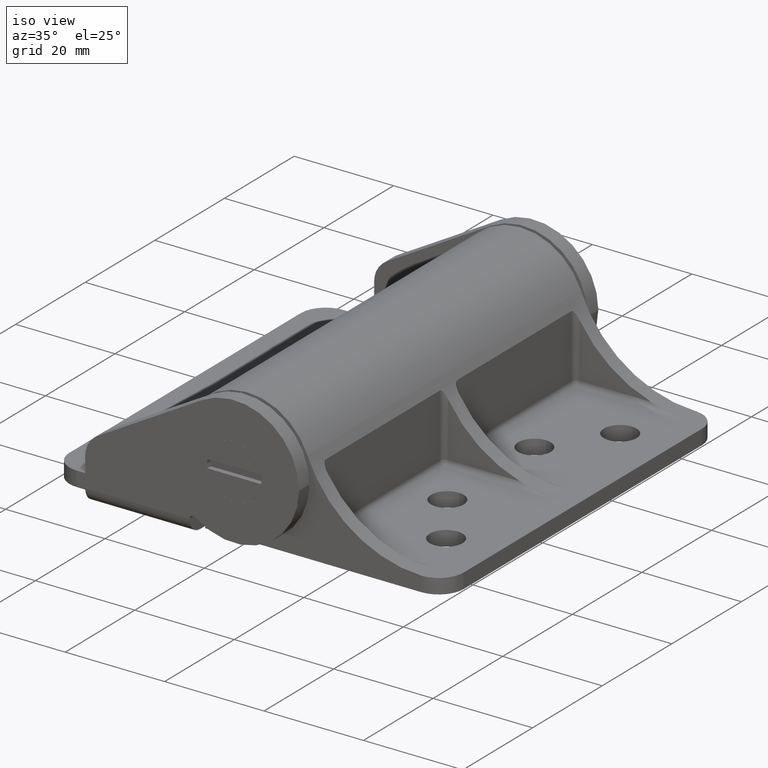
[diagram: clean part render]
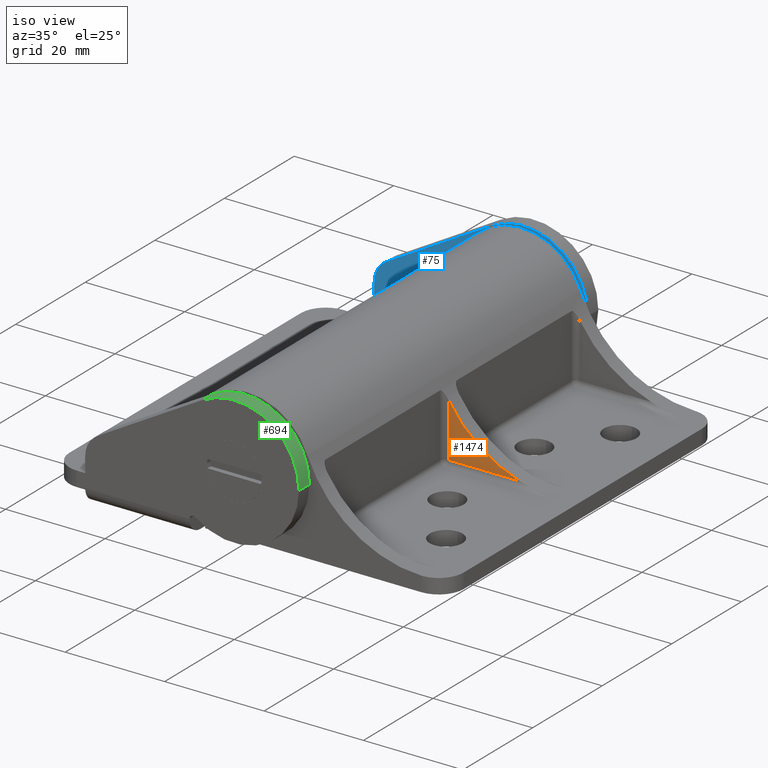
[diagram: same view with three faces highlighted in distinct colors, each labeled with its STEP entity id]
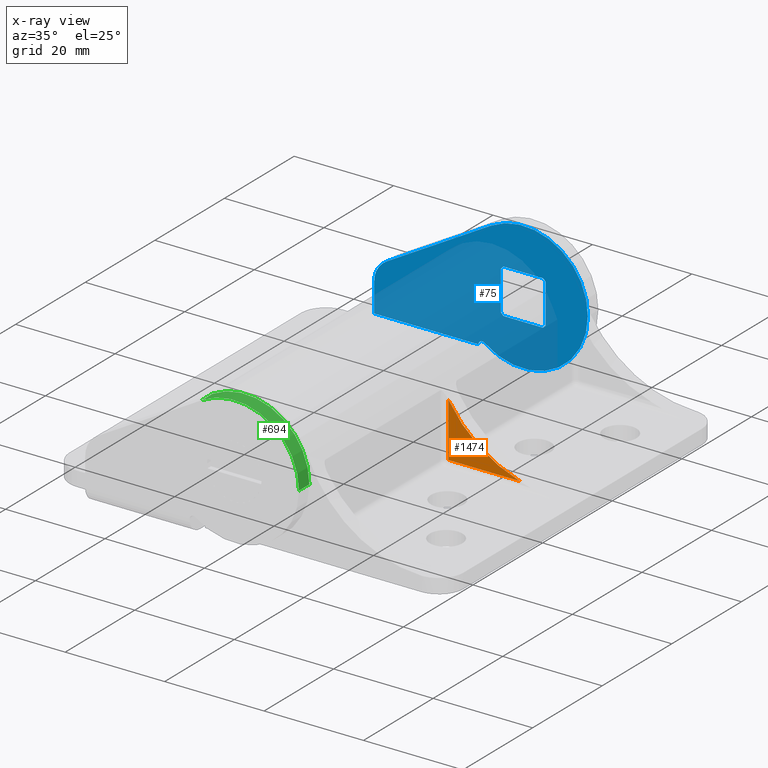
[diagram: x-ray of the same camera — body ghosted, the three highlighted faces saturated]
A machine part, iso view with three faces highlighted in distinct colors.
The next image is the same camera in x-ray (body ghosted, the three faces saturated) — at least one of them is partly hidden behind the body in this view.
Their STEP definitions:

[orange] entity #1474 — the highlighted planar face has unit normal (0, -1, -0).
#194 = CARTESIAN_POINT ( 'NONE',  ( 35.32704350000000200, 10.00000000000000000, 41.50000000000000000 ) ) ;
#594 = FACE_OUTER_BOUND ( 'NONE', #1595, .T. ) ;
#734 = LINE ( 'NONE', #2202, #2346 ) ;
#794 = VERTEX_POINT ( 'NONE', #2863 ) ;
#872 = EDGE_CURVE ( 'NONE', #2406, #794, #3010, .T. ) ;
#975 = AXIS2_PLACEMENT_3D ( 'NONE', #1772, #1479, #1307 ) ;
#1006 = EDGE_CURVE ( 'NONE', #3505, #2406, #734, .T. ) ;
#1307 = DIRECTION ( 'NONE',  ( -1.000000000000000000, 0.0000000000000000000, 0.0000000000000000000 ) ) ;
#1459 = ORIENTED_EDGE ( 'NONE', *, *, #1006, .F. ) ;
#1469 = PLANE ( 'NONE',  #975 ) ;
#1474 = ADVANCED_FACE ( 'NONE', ( #594 ), #1469, .T. ) ;
#1479 = DIRECTION ( 'NONE',  ( 0.0000000000000000000, 0.0000000000000000000, -1.000000000000000000 ) ) ;
#1595 = EDGE_LOOP ( 'NONE', ( #1459, #2918, #2822 ) ) ;
#1754 = VECTOR ( 'NONE', #3507, 1000.000000000000000 ) ;
#1772 = CARTESIAN_POINT ( 'NONE',  ( 14.00000000000000000, 985.9570018245660800, 41.50000000000000000 ) ) ;
#2015 = DIRECTION ( 'NONE',  ( 0.0000000000000000000, -1.000000000000000000, 0.0000000000000000000 ) ) ;
#2033 = CARTESIAN_POINT ( 'NONE',  ( 14.00000000000000000, -0.9555676417443239600, 41.50000000000000000 ) ) ;
#2202 = CARTESIAN_POINT ( 'NONE',  ( 14.00000000000000000, 985.9570018245660800, 41.50000000000000000 ) ) ;
#2346 = VECTOR ( 'NONE', #2015, 1000.000000000000000 ) ;
#2406 = VERTEX_POINT ( 'NONE', #2033 ) ;
#2704 = CARTESIAN_POINT ( 'NONE',  ( 35.32704350000000200, -14.00000000000000000, 41.50000000000000000 ) ) ;
#2733 = DIRECTION ( 'NONE',  ( 0.0000000000000000000, 0.0000000000000000000, -1.000000000000000000 ) ) ;
#2745 = DIRECTION ( 'NONE',  ( -1.000000000000000000, 0.0000000000000000000, 0.0000000000000000000 ) ) ;
#2822 = ORIENTED_EDGE ( 'NONE', *, *, #872, .F. ) ;
#2863 = CARTESIAN_POINT ( 'NONE',  ( 28.32704349999999800, 10.00000000000000000, 41.50000000000000000 ) ) ;
#2918 = ORIENTED_EDGE ( 'NONE', *, *, #3387, .T. ) ;
#3010 = CIRCLE ( 'NONE', #3044, 25.00000000000000000 ) ;
#3044 = AXIS2_PLACEMENT_3D ( 'NONE', #2704, #2733, #2745 ) ;
#3304 = LINE ( 'NONE', #194, #1754 ) ;
#3387 = EDGE_CURVE ( 'NONE', #3505, #794, #3304, .T. ) ;
#3505 = VERTEX_POINT ( 'NONE', #3748 ) ;
#3507 = DIRECTION ( 'NONE',  ( 1.000000000000000000, 0.0000000000000000000, 0.0000000000000000000 ) ) ;
#3748 = CARTESIAN_POINT ( 'NONE',  ( 14.00000000000000000, 10.00000000000000000, 41.50000000000000000 ) ) ;

[blue] entity #75 — the highlighted planar face has unit normal (0, 1, 0).
#18 = ORIENTED_EDGE ( 'NONE', *, *, #2562, .T. ) ;
#49 = LINE ( 'NONE', #1610, #2253 ) ;
#63 = ORIENTED_EDGE ( 'NONE', *, *, #658, .T. ) ;
#75 = ADVANCED_FACE ( 'NONE', ( #747, #2352 ), #1531, .F. ) ;
#107 = DIRECTION ( 'NONE',  ( -2.185546129652404900E-016, 1.000000000000000000, -0.0000000000000000000 ) ) ;
#110 = ORIENTED_EDGE ( 'NONE', *, *, #2683, .T. ) ;
#119 = EDGE_CURVE ( 'NONE', #1727, #555, #559, .T. ) ;
#145 = EDGE_CURVE ( 'NONE', #563, #3155, #1324, .T. ) ;
#166 = ORIENTED_EDGE ( 'NONE', *, *, #1777, .T. ) ;
#178 = CARTESIAN_POINT ( 'NONE',  ( -7.800000000480079800, 10.39999999963994000, 83.00000000000000000 ) ) ;
#205 = ORIENTED_EDGE ( 'NONE', *, *, #1444, .T. ) ;
#238 = CARTESIAN_POINT ( 'NONE',  ( 13.00000000000000000, 0.0000000000000000000, 83.00000000000000000 ) ) ;
#259 = ORIENTED_EDGE ( 'NONE', *, *, #119, .T. ) ;
#296 = ORIENTED_EDGE ( 'NONE', *, *, #1739, .T. ) ;
#342 = ORIENTED_EDGE ( 'NONE', *, *, #571, .T. ) ;
#362 = CIRCLE ( 'NONE', #2951, 5.000000000000000900 ) ;
#364 = AXIS2_PLACEMENT_3D ( 'NONE', #601, #2380, #582 ) ;
#380 = ORIENTED_EDGE ( 'NONE', *, *, #931, .T. ) ;
#384 = ORIENTED_EDGE ( 'NONE', *, *, #2615, .F. ) ;
#416 = CARTESIAN_POINT ( 'NONE',  ( 4.500000000000000000, 3.968626999999799400, 83.00000000000000000 ) ) ;
#453 = AXIS2_PLACEMENT_3D ( 'NONE', #3386, #1519, #3666 ) ;
#494 = ORIENTED_EDGE ( 'NONE', *, *, #1102, .T. ) ;
#537 = ORIENTED_EDGE ( 'NONE', *, *, #1058, .T. ) ;
#538 = ORIENTED_EDGE ( 'NONE', *, *, #2571, .T. ) ;
#555 = VERTEX_POINT ( 'NONE', #3240 ) ;
#559 = CIRCLE ( 'NONE', #364, 6.000000000000000000 ) ;
#563 = VERTEX_POINT ( 'NONE', #3747 ) ;
#571 = EDGE_CURVE ( 'NONE', #2047, #2275, #49, .T. ) ;
#582 = DIRECTION ( 'NONE',  ( -1.000000000000000000, 0.0000000000000000000, 0.0000000000000000000 ) ) ;
#601 = CARTESIAN_POINT ( 'NONE',  ( 0.0000000000000000000, 0.0000000000000000000, 83.00000000000000000 ) ) ;
#656 = CARTESIAN_POINT ( 'NONE',  ( 3.968626999999999700, -4.500000000000000000, 83.00000000000000000 ) ) ;
#658 = EDGE_CURVE ( 'NONE', #1399, #1466, #2144, .T. ) ;
#688 = LINE ( 'NONE', #1827, #3711 ) ;
#747 = FACE_BOUND ( 'NONE', #3833, .T. ) ;
#762 = CARTESIAN_POINT ( 'NONE',  ( -4.500000000000000000, -9.834957583435830800E-016, 83.00000000000000000 ) ) ;
#792 = CARTESIAN_POINT ( 'NONE',  ( 4.500000000000000000, 9.834957583435830800E-016, 83.00000000000000000 ) ) ;
#811 = EDGE_CURVE ( 'NONE', #2017, #563, #1455, .T. ) ;
#849 = DIRECTION ( 'NONE',  ( 2.185546129652404900E-016, -1.000000000000000000, -0.0000000000000000000 ) ) ;
#931 = EDGE_CURVE ( 'NONE', #2275, #1888, #3541, .T. ) ;
#956 = DIRECTION ( 'NONE',  ( -0.0000000000000000000, -0.0000000000000000000, 1.000000000000000000 ) ) ;
#1028 = DIRECTION ( 'NONE',  ( -0.0000000000000000000, 1.000000000000000000, -0.0000000000000000000 ) ) ;
#1031 = AXIS2_PLACEMENT_3D ( 'NONE', #2780, #956, #3088 ) ;
#1058 = EDGE_CURVE ( 'NONE', #2855, #2200, #3753, .T. ) ;
#1102 = EDGE_CURVE ( 'NONE', #1148, #2855, #2758, .T. ) ;
#1121 = DIRECTION ( 'NONE',  ( -0.0000000000000000000, -0.0000000000000000000, -1.000000000000000000 ) ) ;
#1132 = VECTOR ( 'NONE', #107, 1000.000000000000000 ) ;
#1148 = VERTEX_POINT ( 'NONE', #178 ) ;
#1185 = DIRECTION ( 'NONE',  ( -0.0000000000000000000, -0.0000000000000000000, 1.000000000000000000 ) ) ;
#1194 = CARTESIAN_POINT ( 'NONE',  ( 0.0000000000000000000, 0.0000000000000000000, 83.00000000000000000 ) ) ;
#1300 = DIRECTION ( 'NONE',  ( 1.000000000000000000, -0.0000000000000000000, -0.0000000000000000000 ) ) ;
#1324 = LINE ( 'NONE', #762, #2054 ) ;
#1399 = VERTEX_POINT ( 'NONE', #1911 ) ;
#1419 = DIRECTION ( 'NONE',  ( 1.000000000000000000, 1.734723475976806700E-015, 0.0000000000000000000 ) ) ;
#1444 = EDGE_CURVE ( 'NONE', #555, #2017, #688, .T. ) ;
#1455 = CIRCLE ( 'NONE', #2020, 6.000000000000000000 ) ;
#1466 = VERTEX_POINT ( 'NONE', #656 ) ;
#1485 = CARTESIAN_POINT ( 'NONE',  ( 0.0000000000000000000, -4.500000000000000000, 83.00000000000000000 ) ) ;
#1519 = DIRECTION ( 'NONE',  ( -0.0000000000000000000, -0.0000000000000000000, -1.000000000000000000 ) ) ;
#1531 = PLANE ( 'NONE',  #3669 ) ;
#1544 = VECTOR ( 'NONE', #2447, 999.9999999999998900 ) ;
#1592 = DIRECTION ( 'NONE',  ( -0.0000000000000000000, -0.0000000000000000000, -1.000000000000000000 ) ) ;
#1596 = DIRECTION ( 'NONE',  ( -1.000000000000000000, -0.0000000000000000000, -0.0000000000000000000 ) ) ;
#1606 = DIRECTION ( 'NONE',  ( 1.000000000000000000, 0.0000000000000000000, 0.0000000000000000000 ) ) ;
#1610 = CARTESIAN_POINT ( 'NONE',  ( -30.00000000000000000, 5.196152399999990100, 83.00000000000000000 ) ) ;
#1639 = DIRECTION ( 'NONE',  ( 1.000000000000000000, -1.776356839400250500E-015, 0.0000000000000000000 ) ) ;
#1645 = CARTESIAN_POINT ( 'NONE',  ( 0.0000000000000000000, 0.0000000000000000000, 83.00000000000000000 ) ) ;
#1659 = CARTESIAN_POINT ( 'NONE',  ( -30.00000000000000000, 11.00000000000000000, 83.00000000000000000 ) ) ;
#1670 = DIRECTION ( 'NONE',  ( -0.0000000000000000000, -0.0000000000000000000, -1.000000000000000000 ) ) ;
#1727 = VERTEX_POINT ( 'NONE', #416 ) ;
#1737 = CARTESIAN_POINT ( 'NONE',  ( -30.00000000000000000, 5.196152399999990100, 83.00000000000000000 ) ) ;
#1739 = EDGE_CURVE ( 'NONE', #2272, #2047, #362, .T. ) ;
#1777 = EDGE_CURVE ( 'NONE', #2887, #1727, #1848, .T. ) ;
#1827 = CARTESIAN_POINT ( 'NONE',  ( 0.0000000000000000000, 4.500000000000000000, 83.00000000000000000 ) ) ;
#1832 = EDGE_LOOP ( 'NONE', ( #296, #342, #380, #384, #494, #537, #538 ) ) ;
#1848 = LINE ( 'NONE', #792, #1132 ) ;
#1872 = CARTESIAN_POINT ( 'NONE',  ( -4.500000000000000000, -3.968627000000195100, 83.00000000000000000 ) ) ;
#1875 = CARTESIAN_POINT ( 'NONE',  ( -9.000000000000108400, 11.00000000000000000, 83.00000000000000000 ) ) ;
#1888 = VERTEX_POINT ( 'NONE', #1875 ) ;
#1911 = CARTESIAN_POINT ( 'NONE',  ( -3.968626965868764500, -4.500000000642139700, 83.00000000000000000 ) ) ;
#1962 = VECTOR ( 'NONE', #1300, 1000.000000000000000 ) ;
#2017 = VERTEX_POINT ( 'NONE', #2021 ) ;
#2020 = AXIS2_PLACEMENT_3D ( 'NONE', #2611, #3460, #2560 ) ;
#2021 = CARTESIAN_POINT ( 'NONE',  ( -3.968626965868755200, 4.500000000642150300, 83.00000000000000000 ) ) ;
#2047 = VERTEX_POINT ( 'NONE', #1737 ) ;
#2054 = VECTOR ( 'NONE', #849, 1000.000000000000000 ) ;
#2113 = CARTESIAN_POINT ( 'NONE',  ( -6.499999990870009900, -11.25833025446890000, 83.00000000000000000 ) ) ;
#2121 = DIRECTION ( 'NONE',  ( 1.000000000000000000, 0.0000000000000000000, 0.0000000000000000000 ) ) ;
#2144 = LINE ( 'NONE', #1485, #1962 ) ;
#2200 = VERTEX_POINT ( 'NONE', #2857 ) ;
#2253 = VECTOR ( 'NONE', #1028, 1000.000000000000000 ) ;
#2272 = VERTEX_POINT ( 'NONE', #3771 ) ;
#2275 = VERTEX_POINT ( 'NONE', #1659 ) ;
#2352 = FACE_OUTER_BOUND ( 'NONE', #1832, .T. ) ;
#2380 = DIRECTION ( 'NONE',  ( -0.0000000000000000000, -0.0000000000000000000, 1.000000000000000000 ) ) ;
#2447 = DIRECTION ( 'NONE',  ( -0.8660254041899159100, 0.4999999992976929000, -0.0000000000000000000 ) ) ;
#2474 = CIRCLE ( 'NONE', #2547, 6.000000000000000000 ) ;
#2547 = AXIS2_PLACEMENT_3D ( 'NONE', #3040, #1185, #3360 ) ;
#2560 = DIRECTION ( 'NONE',  ( -1.000000000000000000, -9.769962616701377600E-015, 0.0000000000000000000 ) ) ;
#2562 = EDGE_CURVE ( 'NONE', #3155, #1399, #2474, .T. ) ;
#2571 = EDGE_CURVE ( 'NONE', #2200, #2272, #3207, .T. ) ;
#2588 = CARTESIAN_POINT ( 'NONE',  ( 0.0000000000000000000, 0.0000000000000000000, 83.00000000000000000 ) ) ;
#2611 = CARTESIAN_POINT ( 'NONE',  ( 0.0000000000000000000, 0.0000000000000000000, 83.00000000000000000 ) ) ;
#2615 = EDGE_CURVE ( 'NONE', #1148, #1888, #3094, .T. ) ;
#2656 = CARTESIAN_POINT ( 'NONE',  ( 4.500000000642159200, -3.968626965868749900, 83.00000000000000000 ) ) ;
#2683 = EDGE_CURVE ( 'NONE', #1466, #2887, #3005, .T. ) ;
#2758 = CIRCLE ( 'NONE', #3391, 13.00000000000000000 ) ;
#2764 = ORIENTED_EDGE ( 'NONE', *, *, #145, .T. ) ;
#2780 = CARTESIAN_POINT ( 'NONE',  ( 0.0000000000000000000, 0.0000000000000000000, 83.00000000000000000 ) ) ;
#2855 = VERTEX_POINT ( 'NONE', #238 ) ;
#2857 = CARTESIAN_POINT ( 'NONE',  ( -6.499999990870000100, -11.25833025446890000, 83.00000000000000000 ) ) ;
#2887 = VERTEX_POINT ( 'NONE', #2656 ) ;
#2951 = AXIS2_PLACEMENT_3D ( 'NONE', #3576, #1121, #1419 ) ;
#2977 = AXIS2_PLACEMENT_3D ( 'NONE', #1645, #1592, #1606 ) ;
#3005 = CIRCLE ( 'NONE', #1031, 6.000000000000000000 ) ;
#3040 = CARTESIAN_POINT ( 'NONE',  ( 0.0000000000000000000, 0.0000000000000000000, 83.00000000000000000 ) ) ;
#3088 = DIRECTION ( 'NONE',  ( -1.000000000000000000, 0.0000000000000000000, 0.0000000000000000000 ) ) ;
#3094 = CIRCLE ( 'NONE', #453, 0.7499999999999997800 ) ;
#3137 = DIRECTION ( 'NONE',  ( 0.0000000000000000000, 0.0000000000000000000, 1.000000000000000000 ) ) ;
#3155 = VERTEX_POINT ( 'NONE', #1872 ) ;
#3207 = LINE ( 'NONE', #2113, #1544 ) ;
#3240 = CARTESIAN_POINT ( 'NONE',  ( 3.968626965868755200, 4.500000000642150300, 83.00000000000000000 ) ) ;
#3242 = DIRECTION ( 'NONE',  ( 1.000000000000000000, -0.0000000000000000000, -0.0000000000000000000 ) ) ;
#3316 = CARTESIAN_POINT ( 'NONE',  ( -30.00000000000000000, 11.00000000000000000, 83.00000000000000000 ) ) ;
#3360 = DIRECTION ( 'NONE',  ( -1.000000000000000000, 8.881784197001252300E-016, 0.0000000000000000000 ) ) ;
#3386 = CARTESIAN_POINT ( 'NONE',  ( -8.250000000000000000, 11.00000000000000000, 83.00000000000000000 ) ) ;
#3391 = AXIS2_PLACEMENT_3D ( 'NONE', #2588, #1670, #1639 ) ;
#3448 = VECTOR ( 'NONE', #3242, 1000.000000000000000 ) ;
#3460 = DIRECTION ( 'NONE',  ( -0.0000000000000000000, -0.0000000000000000000, 1.000000000000000000 ) ) ;
#3541 = LINE ( 'NONE', #3316, #3448 ) ;
#3576 = CARTESIAN_POINT ( 'NONE',  ( -25.00000000000000000, 5.196152399999990100, 83.00000000000000000 ) ) ;
#3634 = ORIENTED_EDGE ( 'NONE', *, *, #811, .T. ) ;
#3666 = DIRECTION ( 'NONE',  ( 1.000000000000000000, 0.0000000000000000000, 0.0000000000000000000 ) ) ;
#3669 = AXIS2_PLACEMENT_3D ( 'NONE', #1194, #3137, #2121 ) ;
#3711 = VECTOR ( 'NONE', #1596, 1000.000000000000000 ) ;
#3747 = CARTESIAN_POINT ( 'NONE',  ( -4.500000000642139700, 3.968626965868764500, 83.00000000000000000 ) ) ;
#3753 = CIRCLE ( 'NONE', #2977, 13.00000000000000000 ) ;
#3771 = CARTESIAN_POINT ( 'NONE',  ( -27.49999999648859700, 0.8660253790504099900, 83.00000000000000000 ) ) ;
#3833 = EDGE_LOOP ( 'NONE', ( #205, #3634, #2764, #18, #63, #110, #166, #259 ) ) ;

[green] entity #694 — the highlighted cylindrical surface (partial cylindrical patch) has radius 13 mm, axis along (0, 1, 0).
#35 = CARTESIAN_POINT ( 'NONE',  ( -6.499999990870000100, -11.25833025446890000, 3.000000000000000000 ) ) ;
#160 = DIRECTION ( 'NONE',  ( 0.0000000000000000000, 0.0000000000000000000, 1.000000000000000000 ) ) ;
#218 = VERTEX_POINT ( 'NONE', #3637 ) ;
#219 = CARTESIAN_POINT ( 'NONE',  ( 13.00000000000000000, 0.0000000000000000000, 3.000000000000000000 ) ) ;
#239 = EDGE_CURVE ( 'NONE', #3178, #3033, #284, .T. ) ;
#284 = LINE ( 'NONE', #1147, #2678 ) ;
#609 = AXIS2_PLACEMENT_3D ( 'NONE', #2778, #2846, #2170 ) ;
#694 = ADVANCED_FACE ( 'NONE', ( #1850 ), #950, .T. ) ;
#826 = CIRCLE ( 'NONE', #3799, 13.00000000000000000 ) ;
#944 = DIRECTION ( 'NONE',  ( -0.0000000000000000000, -0.0000000000000000000, -1.000000000000000000 ) ) ;
#950 = CYLINDRICAL_SURFACE ( 'NONE', #609, 13.00000000000000000 ) ;
#970 = CARTESIAN_POINT ( 'NONE',  ( -6.500000000000000000, -11.25833020000000000, 0.0000000000000000000 ) ) ;
#1147 = CARTESIAN_POINT ( 'NONE',  ( -6.500000000000000000, -11.25833020000000000, -914.0000000000000000 ) ) ;
#1376 = DIRECTION ( 'NONE',  ( 0.0000000000000000000, 0.0000000000000000000, 1.000000000000000000 ) ) ;
#1433 = ORIENTED_EDGE ( 'NONE', *, *, #3498, .T. ) ;
#1741 = ORIENTED_EDGE ( 'NONE', *, *, #1975, .F. ) ;
#1850 = FACE_OUTER_BOUND ( 'NONE', #3109, .T. ) ;
#1934 = CARTESIAN_POINT ( 'NONE',  ( 13.00000000000000000, 0.0000000000000000000, -914.0000000000000000 ) ) ;
#1975 = EDGE_CURVE ( 'NONE', #218, #3178, #3307, .T. ) ;
#2090 = VECTOR ( 'NONE', #160, 1000.000000000000000 ) ;
#2170 = DIRECTION ( 'NONE',  ( 1.000000000000000000, 0.0000000000000000000, 0.0000000000000000000 ) ) ;
#2285 = AXIS2_PLACEMENT_3D ( 'NONE', #2871, #2884, #2626 ) ;
#2626 = DIRECTION ( 'NONE',  ( 1.000000000000000000, 0.0000000000000000000, 0.0000000000000000000 ) ) ;
#2678 = VECTOR ( 'NONE', #1376, 1000.000000000000000 ) ;
#2774 = CARTESIAN_POINT ( 'NONE',  ( 0.0000000000000000000, 0.0000000000000000000, 3.000000000000000000 ) ) ;
#2778 = CARTESIAN_POINT ( 'NONE',  ( 0.0000000000000000000, 0.0000000000000000000, -914.0000000000000000 ) ) ;
#2846 = DIRECTION ( 'NONE',  ( 0.0000000000000000000, 0.0000000000000000000, 1.000000000000000000 ) ) ;
#2871 = CARTESIAN_POINT ( 'NONE',  ( 0.0000000000000000000, 0.0000000000000000000, 0.0000000000000000000 ) ) ;
#2884 = DIRECTION ( 'NONE',  ( -0.0000000000000000000, -0.0000000000000000000, -1.000000000000000000 ) ) ;
#3033 = VERTEX_POINT ( 'NONE', #35 ) ;
#3082 = DIRECTION ( 'NONE',  ( 1.000000000000000000, 0.0000000000000000000, 0.0000000000000000000 ) ) ;
#3103 = EDGE_CURVE ( 'NONE', #3436, #3033, #826, .T. ) ;
#3109 = EDGE_LOOP ( 'NONE', ( #1741, #1433, #3598, #3236 ) ) ;
#3178 = VERTEX_POINT ( 'NONE', #970 ) ;
#3236 = ORIENTED_EDGE ( 'NONE', *, *, #239, .F. ) ;
#3307 = CIRCLE ( 'NONE', #2285, 13.00000000000000000 ) ;
#3436 = VERTEX_POINT ( 'NONE', #219 ) ;
#3498 = EDGE_CURVE ( 'NONE', #218, #3436, #3611, .T. ) ;
#3598 = ORIENTED_EDGE ( 'NONE', *, *, #3103, .T. ) ;
#3611 = LINE ( 'NONE', #1934, #2090 ) ;
#3637 = CARTESIAN_POINT ( 'NONE',  ( 13.00000000000000000, 0.0000000000000000000, 0.0000000000000000000 ) ) ;
#3799 = AXIS2_PLACEMENT_3D ( 'NONE', #2774, #944, #3082 ) ;